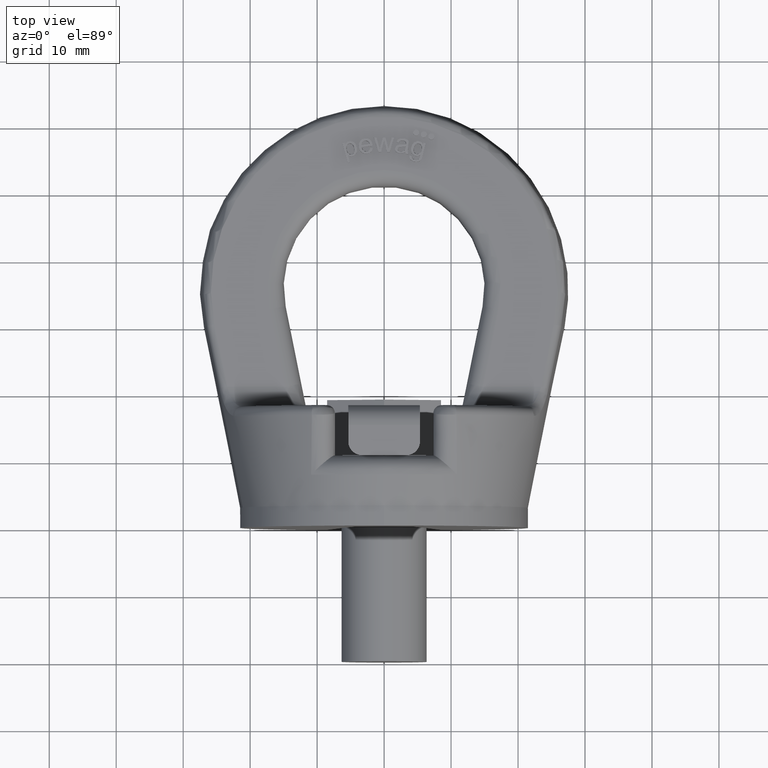
[diagram: clean part render]
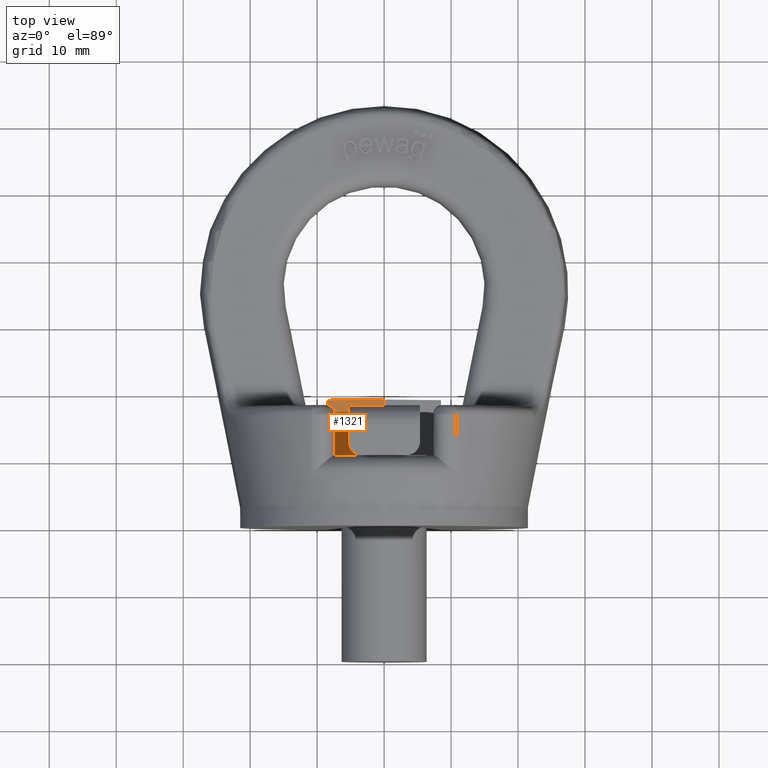
[diagram: same view with one face highlighted and labeled with its STEP entity id]
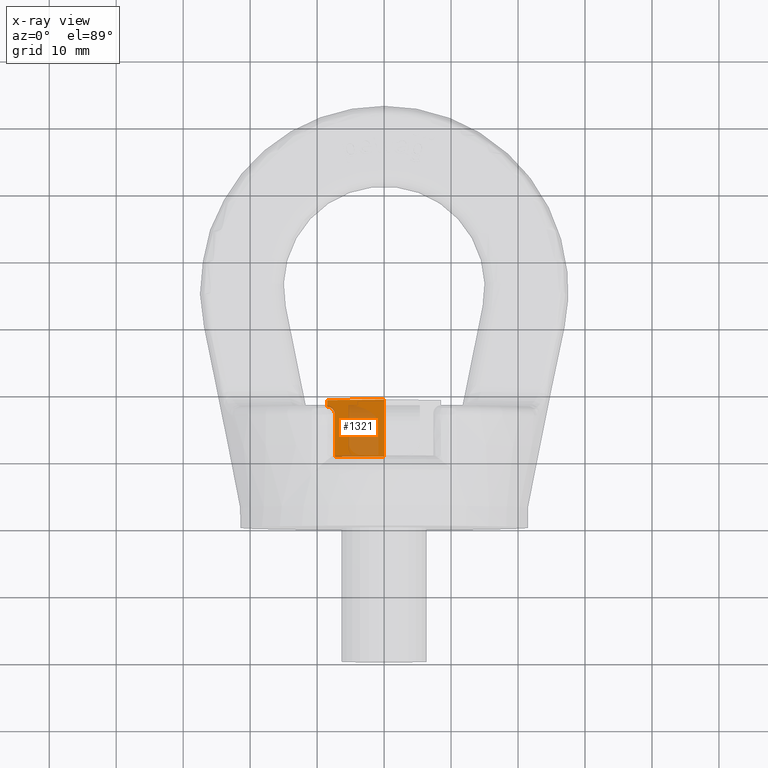
[diagram: x-ray of the same camera — body ghosted, the highlighted face saturated]
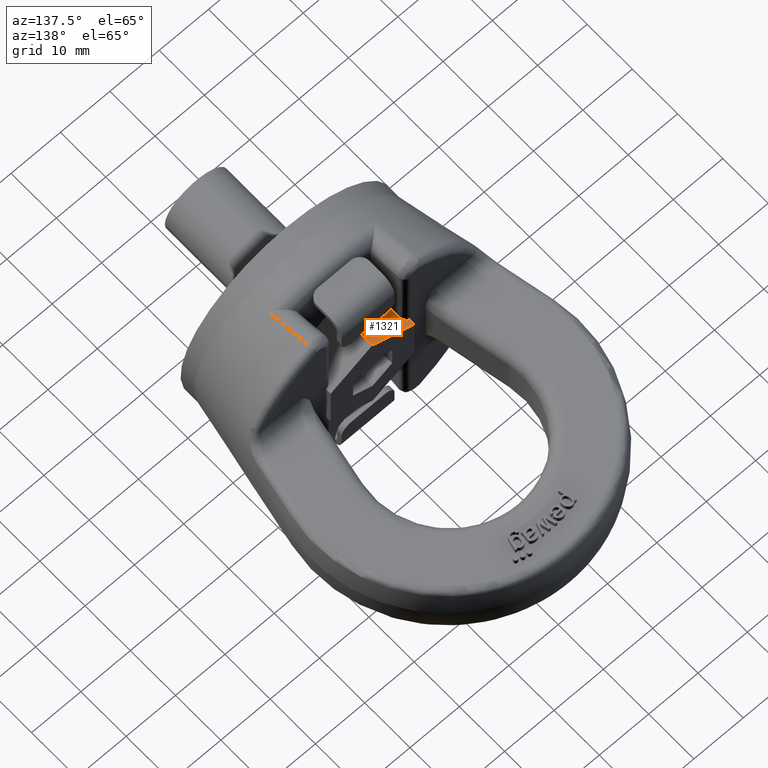
[diagram: same view with one face highlighted and labeled with its STEP entity id]
A machine part, top view. The second image highlights one B-rep face of the part: STEP entity #1321.
The next image is the same camera in x-ray: the body ghosted, the highlighted face saturated — about 48% of this face is hidden behind the body in this view.
A second angle (auxiliary view) of the same face is appended — the face is thin or edge-on in the first view.
In plain terms, the highlighted planar face has unit normal (0.5, 0, -0.866).
Its self-contained STEP definition (entity closure, byte-faithful):
#1049=ELLIPSE('',#5121,1.3856406460551,1.2);
#1100=FACE_OUTER_BOUND('',#1834,.T.);
#1321=ADVANCED_FACE('',(#1100),#1554,.F.);
#1554=PLANE('',#5122);
#1834=EDGE_LOOP('',(#2837,#2838,#2839,#2840,#2841,#2842));
#2109=LINE('',#6484,#2383);
#2121=LINE('',#6563,#2395);
#2126=LINE('',#6594,#2400);
#2142=LINE('',#6821,#2416);
#2143=LINE('',#6823,#2417);
#2383=VECTOR('',#5383,1.);
#2395=VECTOR('',#5403,1.);
#2400=VECTOR('',#5412,1.);
#2416=VECTOR('',#5494,1.);
#2417=VECTOR('',#5497,1.);
#2837=ORIENTED_EDGE('',*,*,#4370,.F.);
#2838=ORIENTED_EDGE('',*,*,#4371,.T.);
#2839=ORIENTED_EDGE('',*,*,#4305,.F.);
#2840=ORIENTED_EDGE('',*,*,#4314,.F.);
#2841=ORIENTED_EDGE('',*,*,#4369,.T.);
#2842=ORIENTED_EDGE('',*,*,#4287,.T.);
#3903=VERTEX_POINT('',#6483);
#3904=VERTEX_POINT('',#6485);
#3921=VERTEX_POINT('',#6564);
#3922=VERTEX_POINT('',#6565);
#3929=VERTEX_POINT('',#6593);
#3975=VERTEX_POINT('',#6824);
#4287=EDGE_CURVE('',#3904,#3903,#2109,.T.);
#4305=EDGE_CURVE('',#3921,#3922,#2121,.T.);
#4314=EDGE_CURVE('',#3929,#3921,#2126,.T.);
#4369=EDGE_CURVE('',#3929,#3904,#2142,.T.);
#4370=EDGE_CURVE('',#3975,#3903,#2143,.T.);
#4371=EDGE_CURVE('',#3975,#3922,#1049,.T.);
#5121=AXIS2_PLACEMENT_3D('',#6825,#5498,#5499);
#5122=AXIS2_PLACEMENT_3D('',#6826,#5500,#5501);
#5383=DIRECTION('',(-0.866025403784442,0.,-0.499999999999994));
#5403=DIRECTION('',(0.,1.,0.));
#5412=DIRECTION('',(-0.866025403784442,-1.02198272022936E-16,-0.499999999999994));
#5494=DIRECTION('',(0.,1.,0.));
#5497=DIRECTION('',(0.,1.,0.));
#5498=DIRECTION('',(0.499999999999994,0.,-0.866025403784442));
#5499=DIRECTION('',(0.866025403784442,0.,0.499999999999994));
#5500=DIRECTION('',(0.499999999999994,0.,-0.866025403784442));
#5501=DIRECTION('',(-0.866025403784442,0.,-0.499999999999994));
#6483=CARTESIAN_POINT('',(-8.5,19.,4.90747728811183));
#6484=CARTESIAN_POINT('',(0.,19.,9.81495457622357));
#6485=CARTESIAN_POINT('',(-1.73472347597681E-15,19.,9.81495457622357));
#6563=CARTESIAN_POINT('',(-7.35,18.,5.57143009767989));
#6564=CARTESIAN_POINT('',(-7.35,10.5,5.57143009767989));
#6565=CARTESIAN_POINT('',(-7.35,16.8,5.57143009767989));
#6593=CARTESIAN_POINT('',(-1.73472347597681E-15,10.5,9.81495457622357));
#6594=CARTESIAN_POINT('',(3.33613423223956,10.5,11.7410725732598));
#6821=CARTESIAN_POINT('',(-1.73472347597681E-15,1.4,9.81495457622357));
#6823=CARTESIAN_POINT('',(-8.5,1.4,4.90747728811183));
#6824=CARTESIAN_POINT('',(-8.5,17.9989578808282,4.90747728811183));
#6825=CARTESIAN_POINT('',(-8.55,16.8,4.87860977465235));
#6826=CARTESIAN_POINT('',(0.,1.4,9.81495457622357));